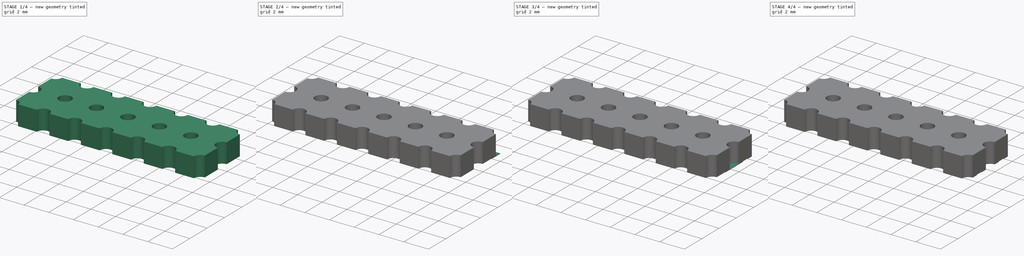
[diagram: build sequence overview — one tinted view per stage of 4, left to right]
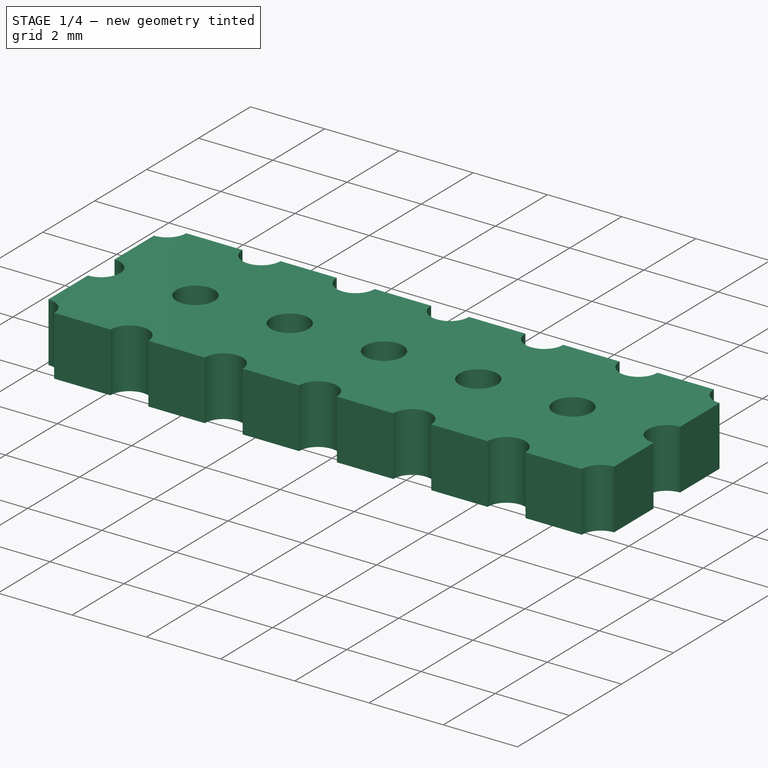
[diagram: stage 1 of 4 — iso view after this stage's code; geometry added in this stage tinted green]
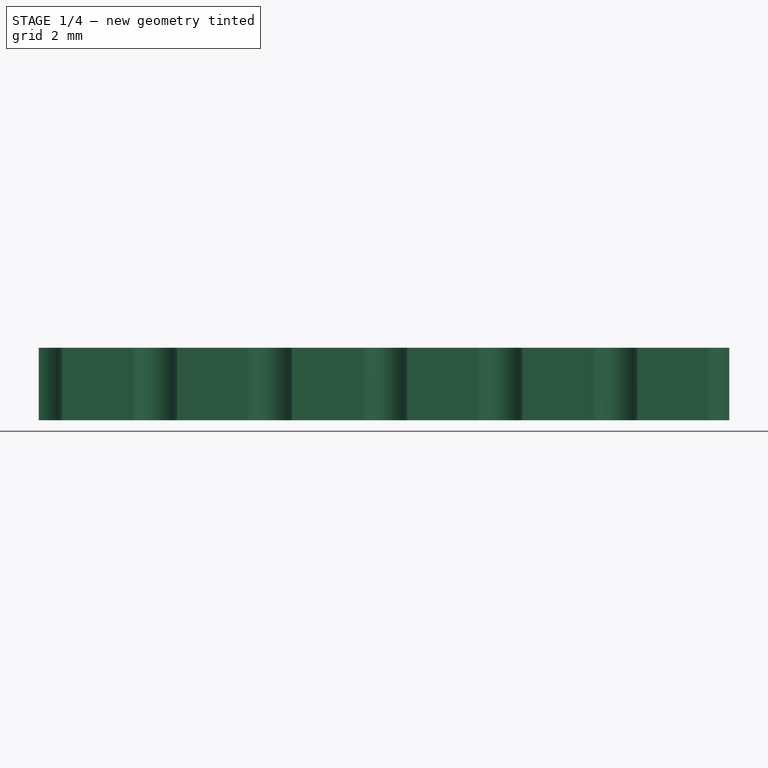
[diagram: stage 1 of 4 — front view after this stage's code; geometry added in this stage tinted green]
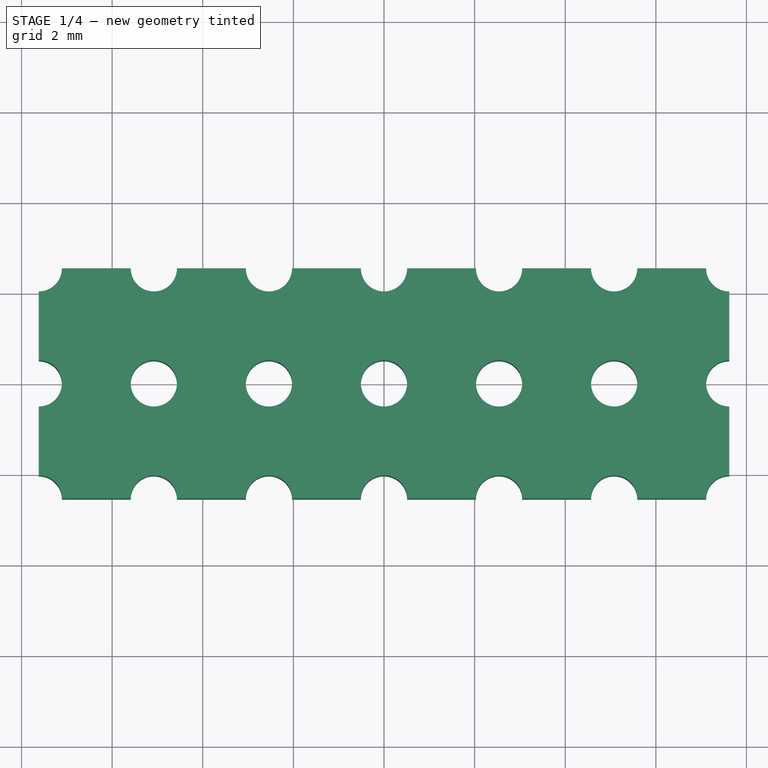
[diagram: stage 1 of 4 — top view after this stage's code; geometry added in this stage tinted green]
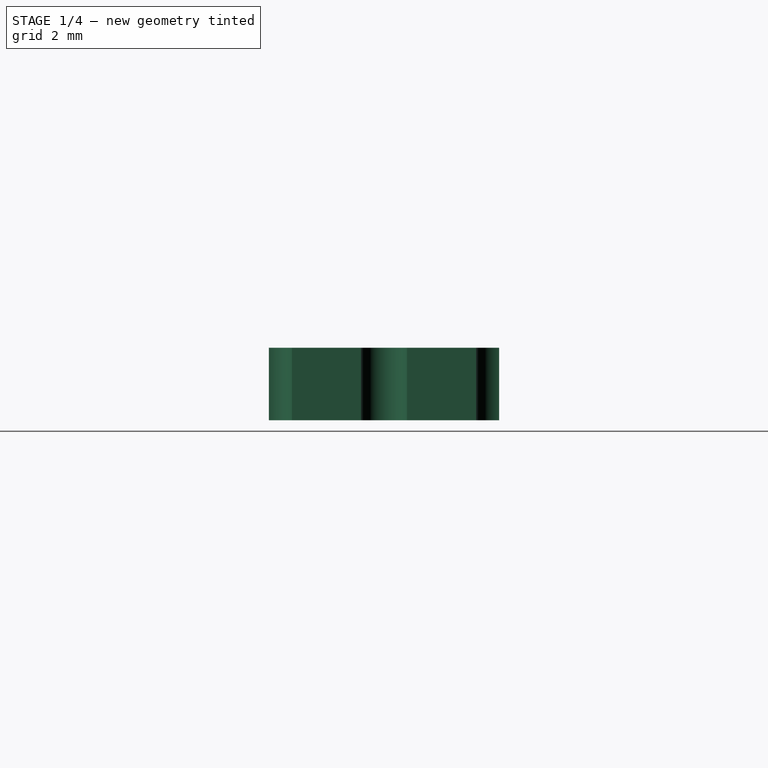
[diagram: stage 1 of 4 — right view after this stage's code; geometry added in this stage tinted green]
FCSTD DOCUMENT  (FreeCAD 0.19R17069 (Git))
Label: Vero Board Generator (PC Compounds Colored)
License: All rights reserved
LicenseURL: http://en.wikipedia.org/wiki/All_rights_reserved
objects: Sketcher::SketchObject×6, PartDesign::Line×6, PartDesign::Body×5, PartDesign::LinearPattern×4, PartDesign::Pad×3, PartDesign::Pocket×3, Part::Compound×2, Spreadsheet::Sheet×1, PartDesign::MultiTransform×1, Part::FeaturePython×1, PartDesign::FeatureBase×1
note: 38 computed .brp shape members not serialized (recipe doc carries the construction recipe); baked Part::Feature solids carry a one-line shape summary decoded from their .brp

FEATURE [Spreadsheet::Sheet] Spreadsheet  label="Data"
  cells = B1=VeroBoard Variables; A2=diameter; B2=Hole Diameter; C2(diameter)==1.02mm; A3=pitch_h; B3=Hole Pitch Horizontal; C3(pitch_h)==2.54mm; A4=pitch_v; B4=Hole Pitch Vertical; C4(pitch_v)==2.54mm; A5=holes_h; B5=Hole Number Horizontal; C5(holes_h)=5; A6=holes_v; B6=Hole Number Vertical (Strips); C6(holes_v)=1; A7=board_thickness; B7=Board Thickness; C7(board_thickness)==1.6mm; A8=cu_thickness; B8=Copper Thickness; C8(cu_thickness)==35um; A9=cu_width; B9=Copper Track Width; C9(cu_width)==2mm
FEATURE [Sketcher::SketchObject] Sketch  label="BoardSketch"
  MapMode = 5
  Support = -> [XY_Plane]
  expr: Constraints[10] = (Data.holes_v + 1) * Data.pitch_v
  expr: Constraints[9] = (Data.holes_h + 1) * Data.pitch_h
  sketch-geometry (4):
    g0: LineSegment StartX=-7.62 StartY=2.54 StartZ=0 EndX=7.62 EndY=2.54 EndZ=0
    g1: LineSegment StartX=7.62 StartY=2.54 StartZ=0 EndX=7.62 EndY=-2.54 EndZ=0
    g2: LineSegment StartX=7.62 StartY=-2.54 StartZ=0 EndX=-7.62 EndY=-2.54 EndZ=0
    g3: LineSegment StartX=-7.62 StartY=-2.54 StartZ=0 EndX=-7.62 EndY=2.54 EndZ=0
  constraints (11):
    c: Coincident(g0,g1)
    c: Coincident(g1,g2)
    c: Coincident(g2,g3)
    c: Coincident(g3,g0)
    c: Horizontal(g0)
    c: Horizontal(g2)
    c: Vertical(g1)
    c: Vertical(g3)
    c: Symmetric(g1,g0,g-1)
    c: DistanceX(g0,g0) = 15.24
    c: DistanceY(g3,g3) = 5.08
FEATURE [PartDesign::Pad] Pad  label="BoardPad"
  Length = 1.6
  Length2 = 100
  Profile = -> Sketch
  Type = 0
  expr: Length = Data.board_thickness
FEATURE [Sketcher::SketchObject] Sketch001  label="EdgeHoleSketch"
  AttachmentOffset = pos=(0,0,1.6) rot=(0,0,1;0rad)
  MapMode = 5
  Placement = pos=(0,0,1.6) rot=(0,0,1;0rad)
  Support = -> [XY_Plane]
  expr: Constraints[2] = (Data.holes_v + 1) * Data.pitch_v / 2
  expr: Constraints[1] = (Data.holes_h + 1) * Data.pitch_h / 2
  expr: Constraints[0] = Data.diameter / 2
  sketch-geometry (1):
    g0: Circle CenterX=-7.62 CenterY=2.54 CenterZ=0 NormalX=0 NormalY=0 NormalZ=1 AngleXU=0 Radius=0.51
  constraints (3):
    c: Radius(g0) = 0.51
    c: DistanceX(g0,g-1) = 7.62
    c: DistanceY(g-1,g0) = 2.54
FEATURE [PartDesign::Pocket] Pocket  label="EdgeHolePocket"
  BaseFeature = -> Pad
  Length = 5
  Length2 = 100
  Profile = -> Sketch001
  Type = 1
FEATURE [PartDesign::Line] DatumLine
  AttacherType = Attacher::AttachEngineLine
  MapMode = 29
  Placement = pos=(0,0,0) rot=(0,0.707107,0.707107;3.14159rad)
  Support = -> [Y_Axis001]
FEATURE [PartDesign::Line] DatumLine001
  AttacherType = Attacher::AttachEngineLine
  MapMode = 29
  Placement = pos=(0,0,0) rot=(0.57735,0.57735,0.57735;2.0944rad)
  Support = -> [X_Axis001]
FEATURE [PartDesign::Line] DatumLine002
  AttacherType = Attacher::AttachEngineLine
  AttachmentOffset = pos=(2.54,0,0) rot=(0,0,1;0rad)
  MapMode = 29
  Placement = pos=(-2.54,3e-16,0) rot=(0,0.707107,0.707107;3.14159rad)
  Support = -> [DatumLine]
  expr: AttachmentOffset.Base.x = Data.pitch_h
FEATURE [PartDesign::Line] DatumLine003
  AttacherType = Attacher::AttachEngineLine
  AttachmentOffset = pos=(2.54,0,0) rot=(0,0,1;0rad)
  MapMode = 29
  Placement = pos=(0,2.54,0) rot=(0.57735,0.57735,0.57735;2.0944rad)
  Support = -> [DatumLine001]
  expr: AttachmentOffset.Base.x = Data.pitch_v
FEATURE [PartDesign::Line] DatumLine004
  AttacherType = Attacher::AttachEngineLine
  AttachmentOffset = pos=(-2.54,0,0) rot=(0,0,1;0rad)
  MapMode = 29
  Placement = pos=(0,-2.54,0) rot=(0.57735,0.57735,0.57735;2.0944rad)
  Support = -> [X_Axis001]
  expr: AttachmentOffset.Base.x = -Data.pitch_v
FEATURE [PartDesign::Line] DatumLine005
  AttacherType = Attacher::AttachEngineLine
  AttachmentOffset = pos=(-2.54,0,0) rot=(0,0,1;0rad)
  MapMode = 29
  Placement = pos=(2.54,-3e-16,0) rot=(0,0.707107,0.707107;3.14159rad)
  Support = -> [Y_Axis001]
  expr: AttachmentOffset.Base.x = -Data.pitch_h
FEATURE [PartDesign::Body] Body001  label="PitchGrid"
  Group = -> [DatumLine,DatumLine001,DatumLine002,DatumLine003,DatumLine004,DatumLine005]
  Origin = -> Origin001
FEATURE [PartDesign::LinearPattern] LinearPattern
  Direction = -> Sketch001 [H_Axis]
  Length = 15.24
  Occurrences = 7
  expr: Occurrences = Data.holes_h + 2
  expr: Length = (Data.holes_h + 1) * Data.pitch_h
FEATURE [PartDesign::LinearPattern] LinearPattern003
  Direction = -> Y_Axis
  Length = 5.08
  Occurrences = 3
  Reversed = true
  expr: Occurrences = Data.holes_v + 2
  expr: Length = (Data.holes_v + 1) * Data.pitch_v
FEATURE [PartDesign::MultiTransform] MultiTransform
  BaseFeature = -> Pocket
  Originals = -> [Pocket]
  Transformations = -> [LinearPattern,LinearPattern003]
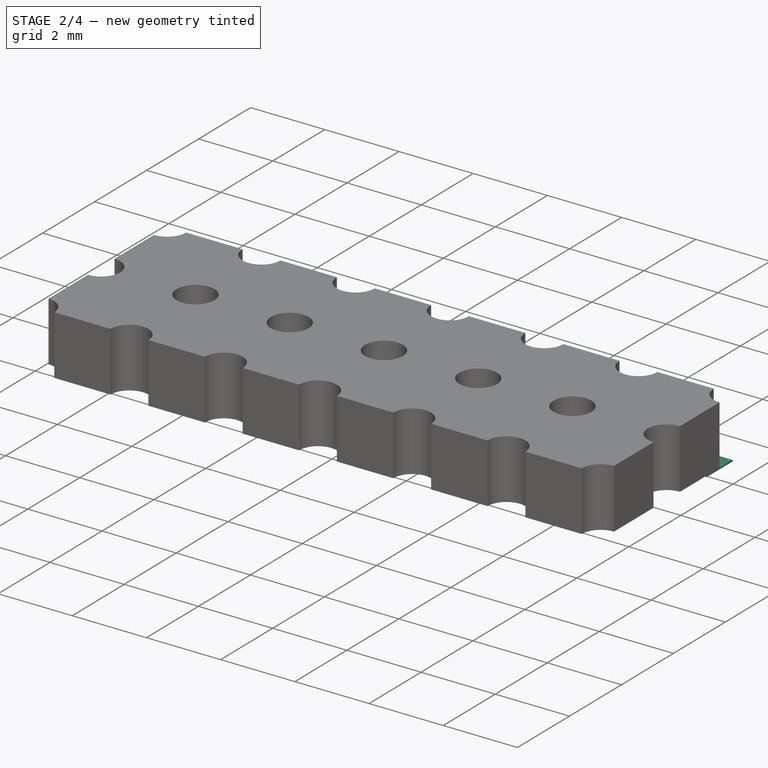
[diagram: stage 2 of 4 — iso view after this stage's code; geometry added in this stage tinted green]
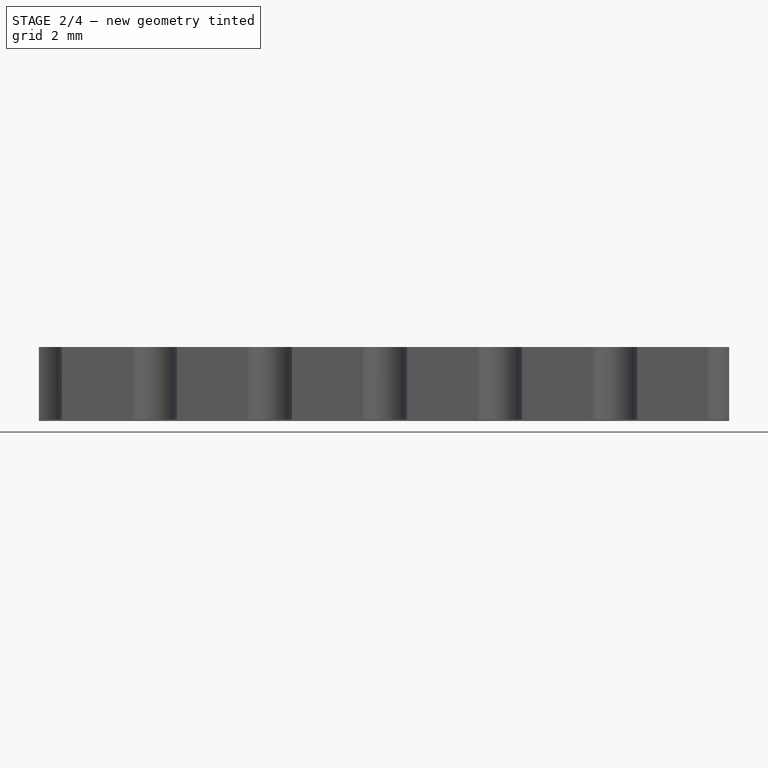
[diagram: stage 2 of 4 — front view after this stage's code; geometry added in this stage tinted green]
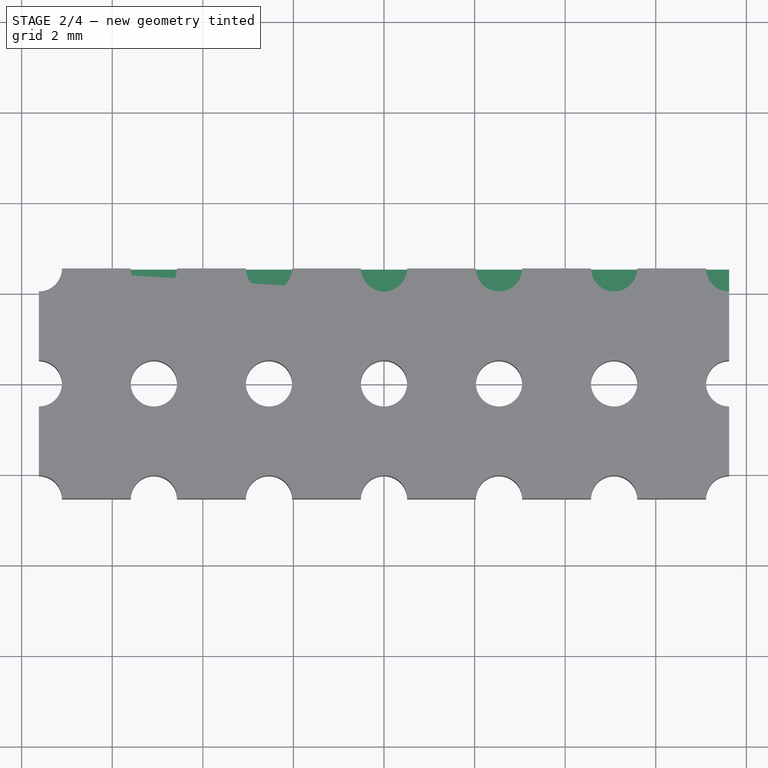
[diagram: stage 2 of 4 — top view after this stage's code; geometry added in this stage tinted green]
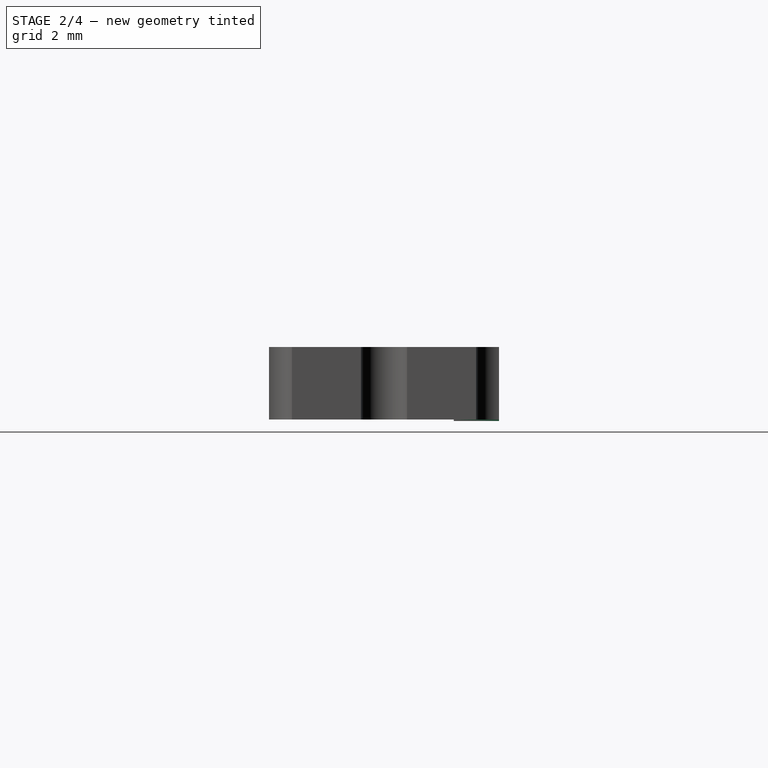
[diagram: stage 2 of 4 — right view after this stage's code; geometry added in this stage tinted green]
FEATURE [Sketcher::SketchObject] Sketch004
  MapMode = 5
  Support = -> [XY_Plane003]
  expr: Constraints[17] = (Data.holes_v + 1) * Data.pitch_v / 2
  expr: Constraints[16] = Sketch002.Constraints[17]
  expr: Constraints[8] = Data.cu_width / 2
  expr: Constraints[15] = Sketch002.Constraints[16]
  sketch-geometry (7):
    g0: LineSegment StartX=-7.62 StartY=2.54 StartZ=0 EndX=7.62 EndY=2.54 EndZ=0
    g1: LineSegment StartX=7.62 StartY=2.54 StartZ=0 EndX=7.62 EndY=1.54 EndZ=0
    g2: LineSegment StartX=7.62 StartY=1.54 StartZ=0 EndX=-7.62 EndY=1.54 EndZ=0
    g3: LineSegment StartX=-7.62 StartY=1.54 StartZ=0 EndX=-7.62 EndY=2.54 EndZ=0
    g4: LineSegment [constr] StartX=-7.62 StartY=1.54 StartZ=0 EndX=7.62 EndY=2.54 EndZ=0
    g5: GeomPoint X=3.3e-15 Y=2.04 Z=0
    g6: LineSegment [constr] StartX=-7.62 StartY=2.54 StartZ=0 EndX=7.62 EndY=1.54 EndZ=0
  constraints (18):
    c: Coincident(g0,g1)
    c: Coincident(g1,g2)
    c: Coincident(g2,g3)
    c: Coincident(g3,g0)
    c: Horizontal(g0)
    c: Horizontal(g2)
    c: Vertical(g1)
    c: Vertical(g3)
    c: DistanceY(g3,g3) = 1
    c: Coincident(g4,g2)
    c: Coincident(g4,g0)
    c: PointOnObject(g5,g4)
    c: Coincident(g6,g0)
    c: Coincident(g6,g1)
    c: PointOnObject(g5,g6)
    c: DistanceX(g0,g-1) = 7.62
    c: DistanceX(g0,g0) = 15.24
    c: DistanceY(g-1,g0) = 2.54
FEATURE [PartDesign::Pad] Pad002  label="PartialStripPad"
  Length = 0.035
  Length2 = 100
  Profile = -> Sketch004
  Reversed = true
  Type = 0
  expr: Length = Data.cu_thickness
FEATURE [Sketcher::SketchObject] Sketch005
  MapMode = 5
  Support = -> [XY_Plane003]
  expr: Constraints[2] = (Data.holes_v + 1) * Data.pitch_v / 2
  expr: Constraints[1] = (Data.holes_h + 1) * Data.pitch_h / 2
  expr: Constraints[0] = Data.diameter / 2
  sketch-geometry (1):
    g0: Circle CenterX=-7.62 CenterY=2.54 CenterZ=0 NormalX=0 NormalY=0 NormalZ=1 AngleXU=0 Radius=0.51
  constraints (3):
    c: Radius(g0) = 0.51
    c: DistanceX(g0,g-1) = 7.62
    c: DistanceY(g-1,g0) = 2.54
FEATURE [PartDesign::Pocket] Pocket002  label="PartialStripPocket"
  BaseFeature = -> Pad002
  Length = 5
  Length2 = 100
  Profile = -> Sketch005
  Type = 1
FEATURE [Part::Compound] Compound001  label="CompoundBoard"
  Links = -> [Body]
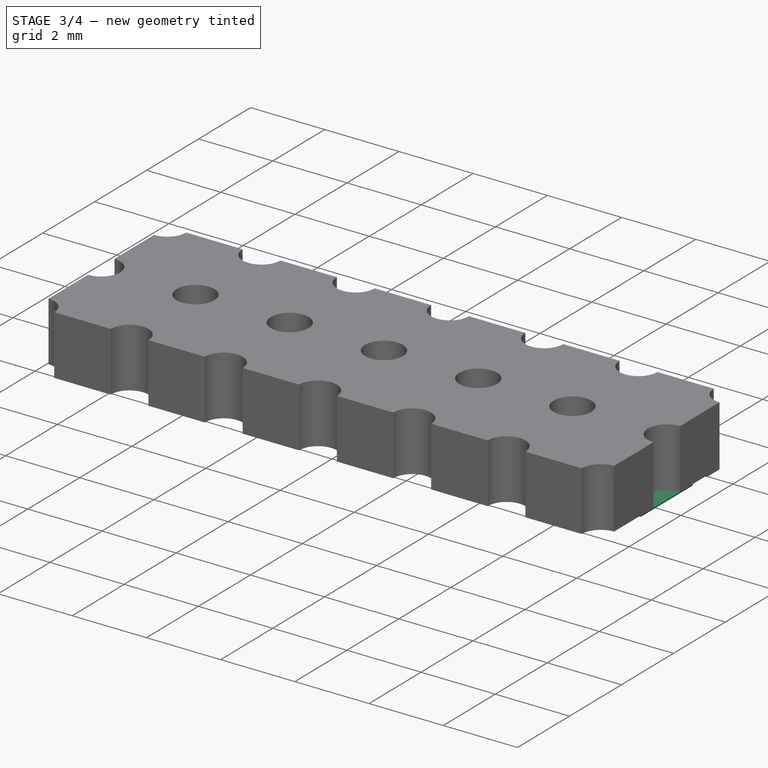
[diagram: stage 3 of 4 — iso view after this stage's code; geometry added in this stage tinted green]
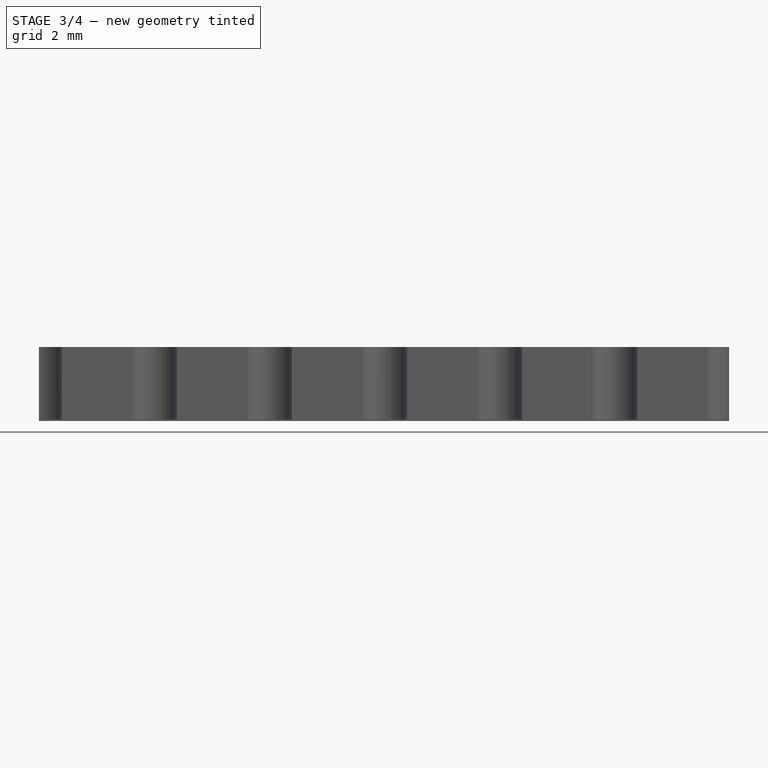
[diagram: stage 3 of 4 — front view after this stage's code; geometry added in this stage tinted green]
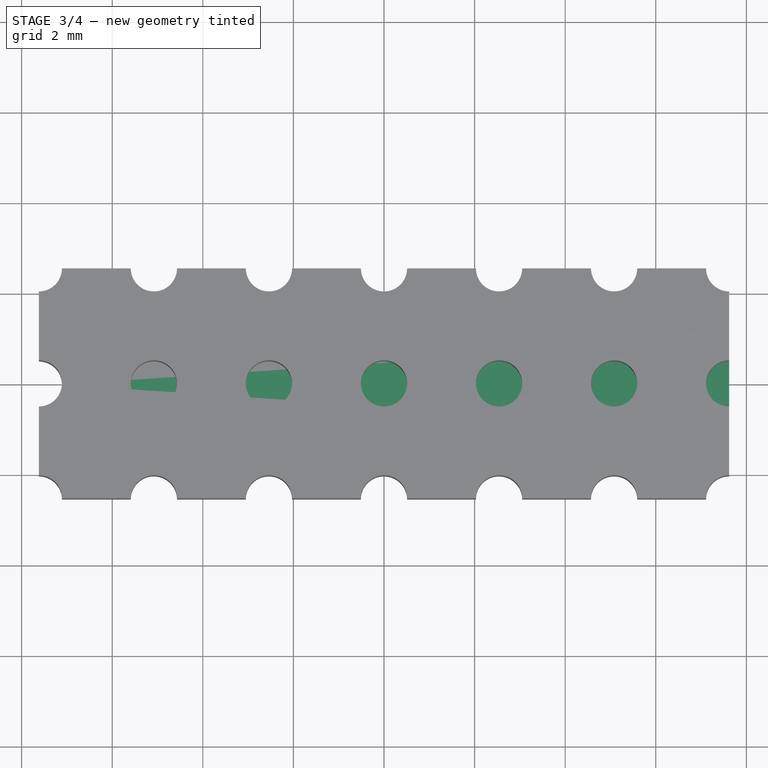
[diagram: stage 3 of 4 — top view after this stage's code; geometry added in this stage tinted green]
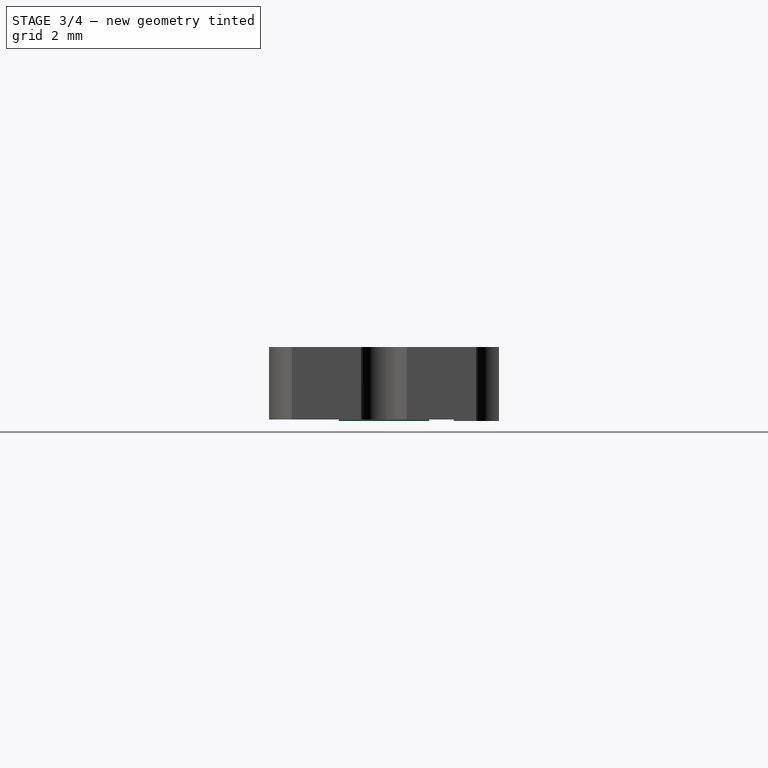
[diagram: stage 3 of 4 — right view after this stage's code; geometry added in this stage tinted green]
FEATURE [PartDesign::Body] Body  label="VeroBoard"
  Group = -> [Sketch,Pad,Sketch001,Pocket,MultiTransform,LinearPattern,LinearPattern003]
  Origin = -> Origin
  Tip = -> MultiTransform
FEATURE [Sketcher::SketchObject] Sketch002
  MapMode = 5
  Support = -> [XY_Plane002]
  expr: Constraints[15] = (Data.holes_v - 1) * Data.pitch_v / 2
  expr: Constraints[17] = (Data.holes_h + 1) * Data.pitch_h
  expr: Constraints[8] = Data.cu_width
  expr: Constraints[16] = (Data.holes_h + 1) * Data.pitch_h / 2
  sketch-geometry (7):
    g0: LineSegment StartX=-7.62 StartY=1 StartZ=0 EndX=7.62 EndY=1 EndZ=0
    g1: LineSegment StartX=7.62 StartY=1 StartZ=0 EndX=7.62 EndY=-1 EndZ=0
    g2: LineSegment StartX=7.62 StartY=-1 StartZ=0 EndX=-7.62 EndY=-1 EndZ=0
    g3: LineSegment StartX=-7.62 StartY=-1 StartZ=0 EndX=-7.62 EndY=1 EndZ=0
    g4: LineSegment [constr] StartX=-7.62 StartY=-1 StartZ=0 EndX=7.62 EndY=1 EndZ=0
    g5: GeomPoint X=-2e-16 Y=0 Z=0
    g6: LineSegment [constr] StartX=-7.62 StartY=1 StartZ=0 EndX=7.62 EndY=-1 EndZ=0
  constraints (18):
    c: Coincident(g0,g1)
    c: Coincident(g1,g2)
    c: Coincident(g2,g3)
    c: Coincident(g3,g0)
    c: Horizontal(g0)
    c: Horizontal(g2)
    c: Vertical(g1)
    c: Vertical(g3)
    c: DistanceY(g3,g3) = 2
    c: Coincident(g4,g2)
    c: Coincident(g4,g0)
    c: PointOnObject(g5,g4)
    c: Coincident(g6,g0)
    c: Coincident(g6,g1)
    c: PointOnObject(g5,g6)
    c: DistanceY(g-1,g5) = 0
    c: DistanceX(g0,g-1) = 7.62
    c: DistanceX(g0,g0) = 15.24
FEATURE [PartDesign::Pad] Pad001  label="FullStripPad"
  Length = 0.035
  Length2 = 100
  Profile = -> Sketch002
  Reversed = true
  Type = 0
  expr: Length = Data.cu_thickness
FEATURE [Sketcher::SketchObject] Sketch003
  MapMode = 5
  Support = -> [XY_Plane002]
  expr: Constraints[1] = (Data.holes_v - 1) * Data.pitch_v / 2
  expr: Constraints[2] = (Data.holes_h + 1) * Data.pitch_h / 2
  expr: Constraints[0] = Data.diameter / 2
  sketch-geometry (1):
    g0: Circle CenterX=-7.62 CenterY=0 CenterZ=0 NormalX=0 NormalY=0 NormalZ=1 AngleXU=0 Radius=0.51
  constraints (3):
    c: Radius(g0) = 0.51
    c: DistanceY(g-1,g0) = 0
    c: DistanceX(g0,g-1) = 7.62
FEATURE [PartDesign::Pocket] Pocket001  label="FullStripPocket"
  BaseFeature = -> Pad001
  Length = 5
  Length2 = 100
  Profile = -> Sketch003
  Type = 1
FEATURE [PartDesign::LinearPattern] LinearPattern005
  BaseFeature = -> Pocket002
  Direction = -> X_Axis003
  Length = 15.24
  Occurrences = 7
  Originals = -> [Pocket002]
  expr: Occurrences = Data.holes_h + 2
  expr: Length = (Data.holes_h + 1) * Data.pitch_h
FEATURE [PartDesign::Body] Body003  label="PartialCopperStrips"
  Group = -> [Sketch004,Pad002,Sketch005,Pocket002,LinearPattern005]
  Origin = -> Origin003
  Tip = -> LinearPattern005
FEATURE [PartDesign::FeatureBase] Clone
  BaseFeature = -> Body003
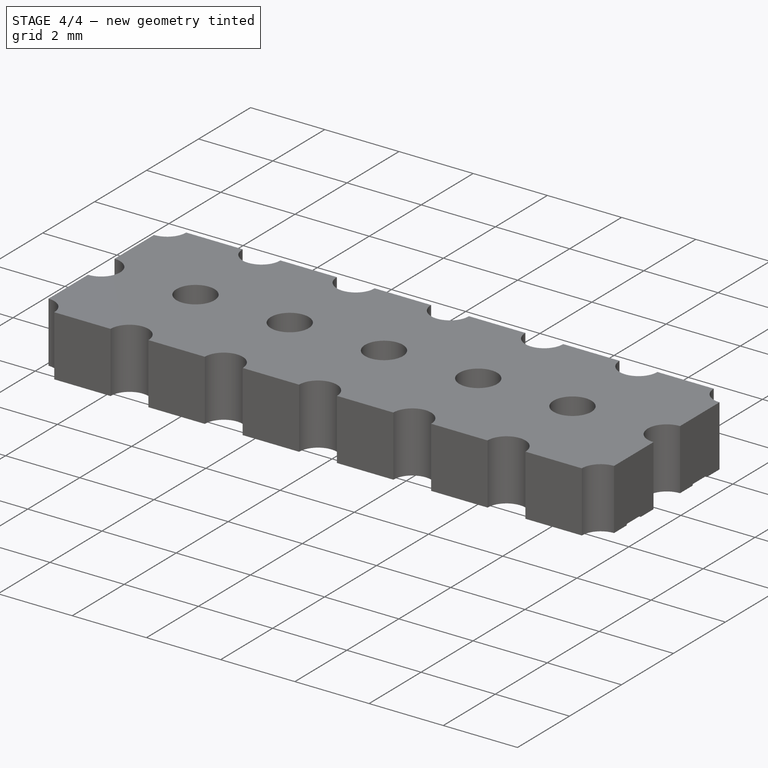
[diagram: stage 4 of 4 — iso view after this stage's code; geometry added in this stage tinted green]
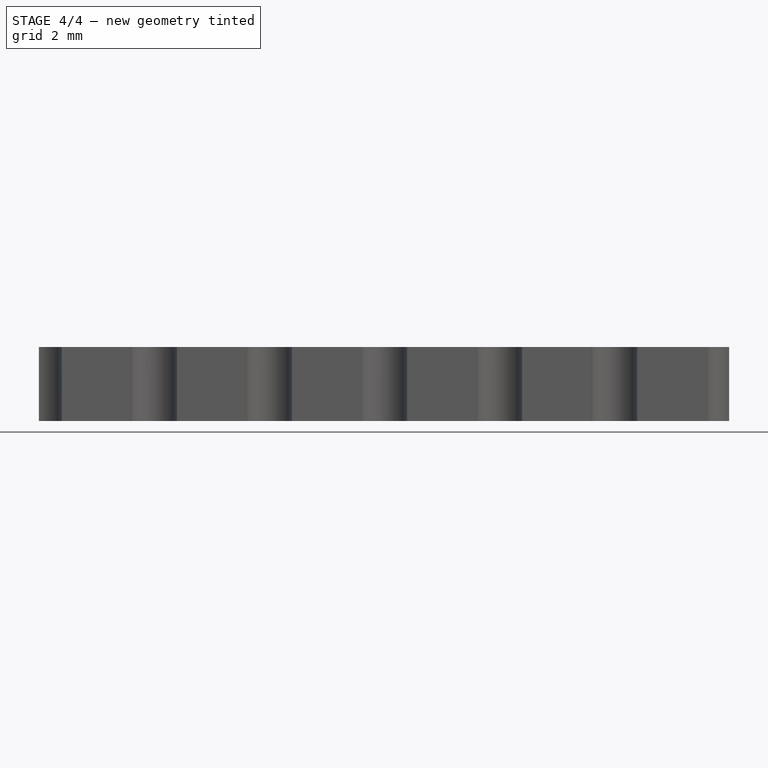
[diagram: stage 4 of 4 — front view after this stage's code; geometry added in this stage tinted green]
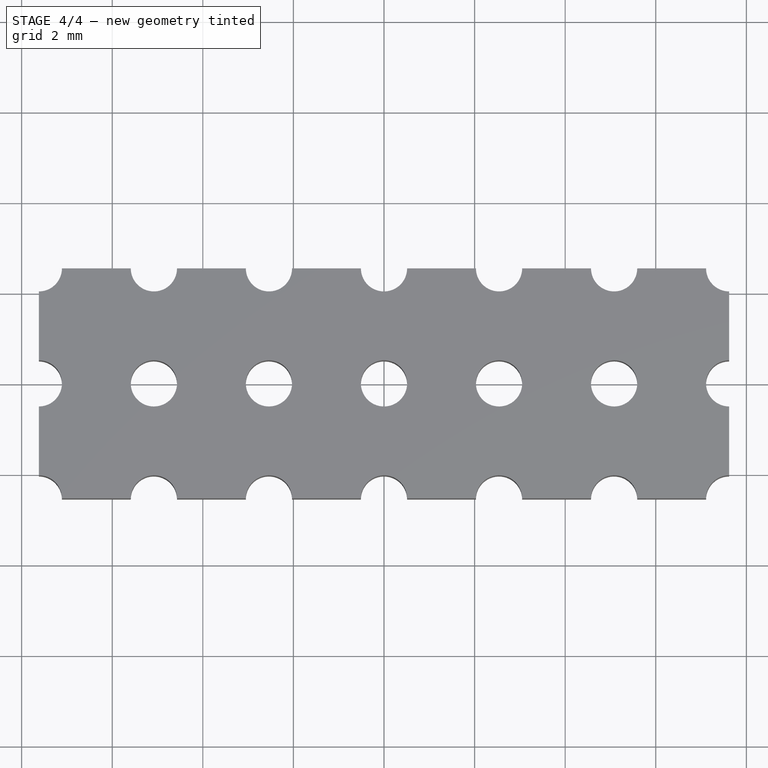
[diagram: stage 4 of 4 — top view after this stage's code; geometry added in this stage tinted green]
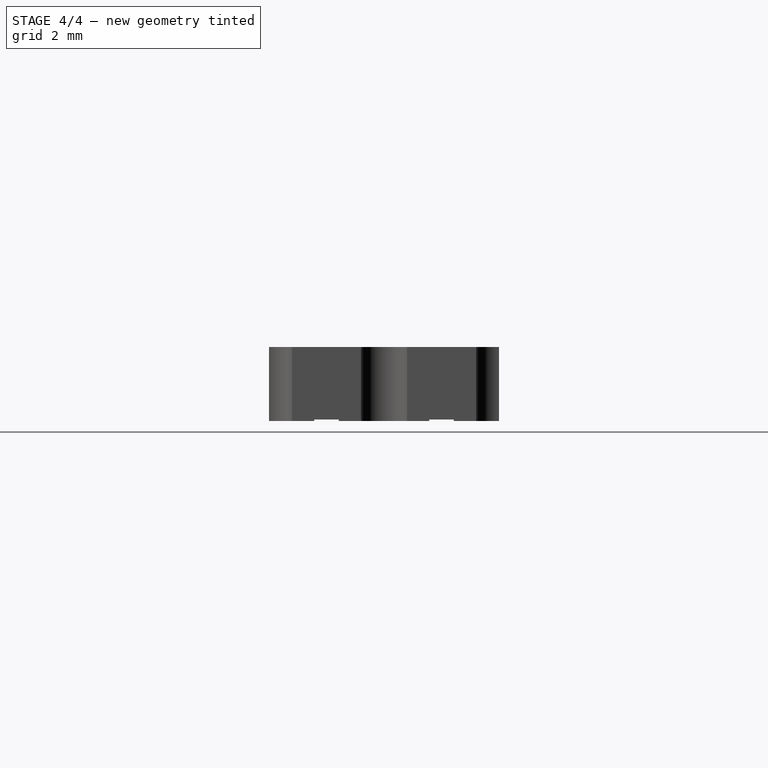
[diagram: stage 4 of 4 — right view after this stage's code; geometry added in this stage tinted green]
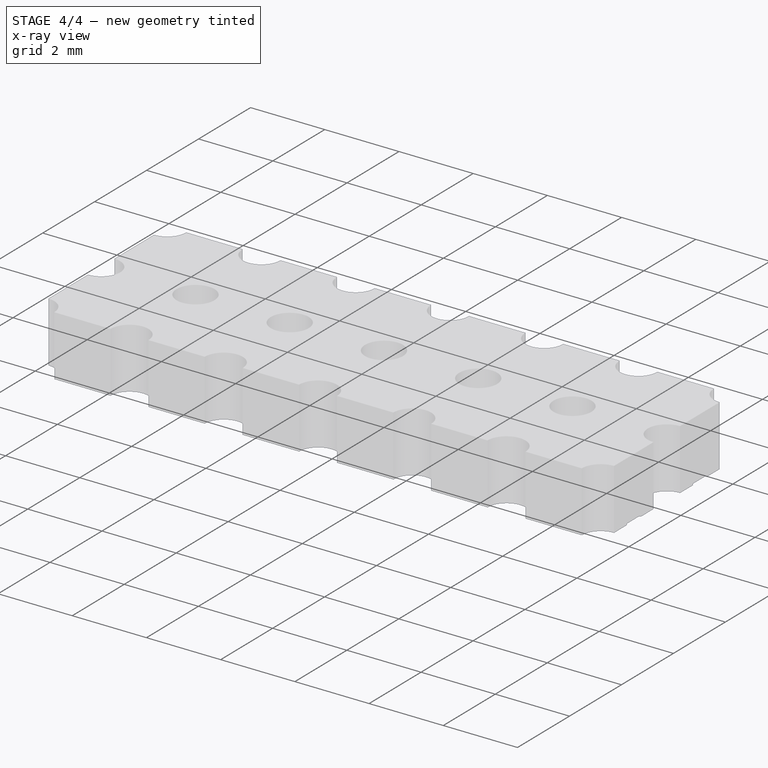
[diagram: stage 4 of 4 — x-ray composite at the iso view; earlier geometry ghosted, this stage's added geometry solid]
FEATURE [PartDesign::LinearPattern] LinearPattern004  label="FullStripLinearPattern"
  BaseFeature = -> Pocket001
  Direction = -> X_Axis002
  Length = 15.24
  Occurrences = 7
  Originals = -> [Pocket001]
  expr: Occurrences = Data.holes_h + 2
  expr: Length = (Data.holes_h + 1) * Data.pitch_h
FEATURE [PartDesign::Body] Body002  label="FullCopperStrips"
  Group = -> [Sketch002,Pad001,Sketch003,Pocket001,LinearPattern004]
  Origin = -> Origin002
  Tip = -> LinearPattern004
FEATURE [Part::FeaturePython] Array  label="FullCopperStripsArray"  # Draft array (typed FeaturePython)
  Angle = 360
  ArrayType = 0
  Axis = (0,0,1)
  Base = -> Body002
  Center = (0,0,0)
  Fuse = false
  IntervalAxis = (0,0,0)
  IntervalX = (1,0,0)
  IntervalY = (0,-2.54,0)
  IntervalZ = (0,0,1)
  NumberPolar = 1
  NumberX = 1
  NumberY = 1
  NumberZ = 1
  expr: NumberY = Data.holes_v
FEATURE [PartDesign::Body] Body004  label="PartialCopperStripsClone"
  BaseFeature = -> Body003
  Group = -> [Clone]
  Origin = -> Origin004
  Placement = pos=(0,0,0) rot=(0,0,1;3.14159rad)
  Tip = -> Clone
FEATURE [Part::Compound] Compound  label="CompoundCopper"
  Links = -> [Body004,Body003,Array]
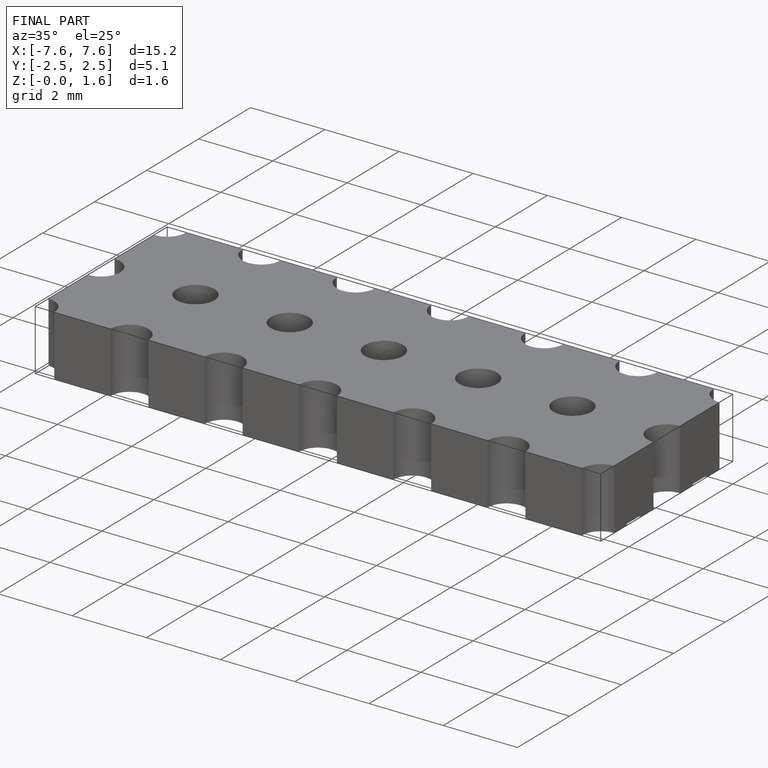
[diagram: finished part — iso view with bounding-box wireframe]
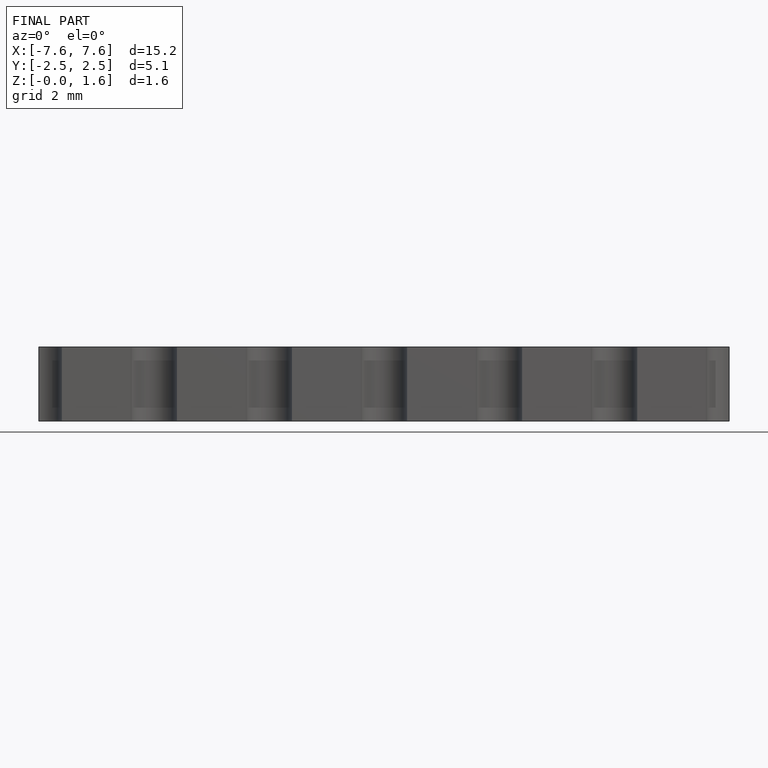
[diagram: finished part — front view with bounding-box wireframe]
